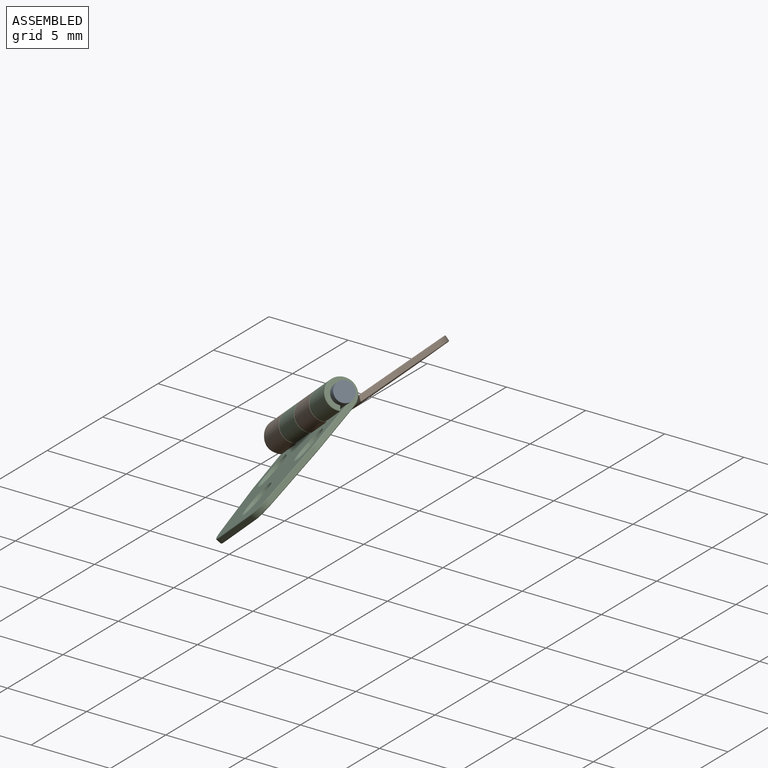
[diagram: assembled view]
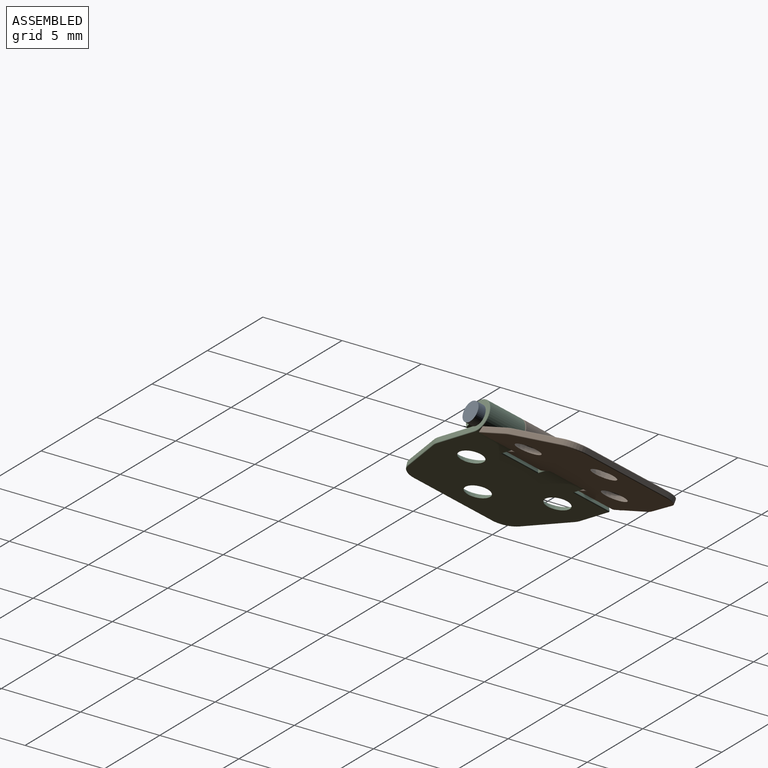
[diagram: assembled view, second angle]
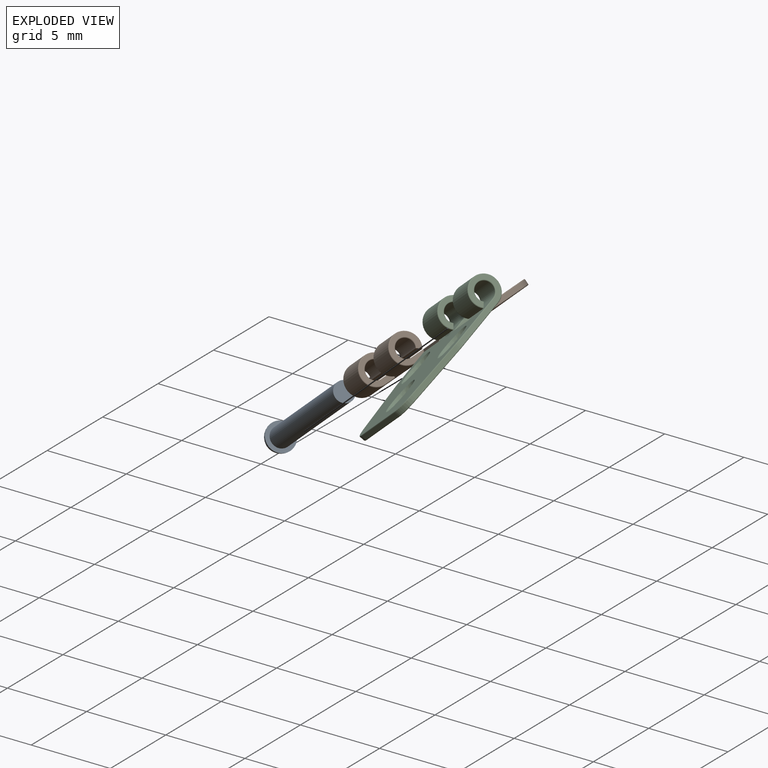
[diagram: exploded view]
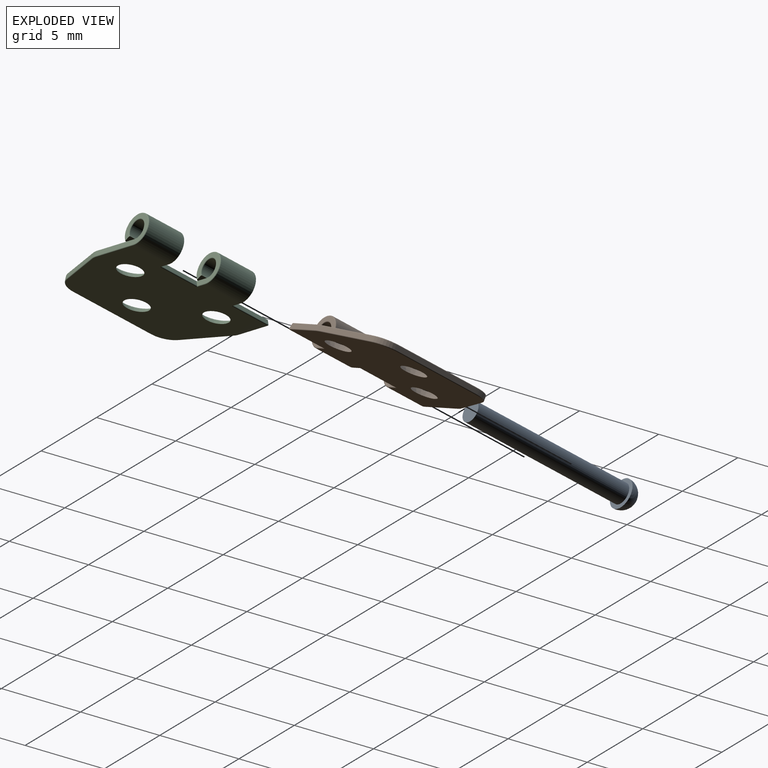
[diagram: exploded view, second angle]
ASSEMBLY  parts=3 mates=4
PART A: 4 faces, bbox 11.4x1.8x1.8 mm
  f0: cylinder r=0.62mm len=10.5mm, axis (-1,0,0), area 40.8mm2, adj f1,f3
  f1: plane 1.24x1.24mm, normal (1,0,0), area 1.2mm2, adj f0
  f2: sphere r=0.88mm, area 4.8mm2, adj f3
  f3: plane 1.75x1.75mm, normal (1,0,0), area 1.2mm2, adj f0,f2
PART B: 64 faces, bbox 10x8.6x2 mm
  f0: cylinder r=0.56mm len=2.4mm, axis (-1,0,0), area 7.1mm2, adj f2,f3,f32,f54
  f1: cylinder r=0.94mm len=2.4mm, axis (-1,0,0), area 11.9mm2, adj f2,f4,f36,f59
  f2: plane 2.5x0.31mm, normal (0,0.58,-0.81), area 0.9mm2, adj f0,f1,f17,f20,f32,f36,f54,f59
  f3: plane 9.9x7.45mm, normal (0,0,1), area 51.7mm2, adj f0,f7,f13,f14,f15,f26,f27,f28
  f4: plane 9.9x7.45mm, normal (0,0,-1), area 58.9mm2, adj f1,f8,f13,f14,f15,f39,f41,f44
  f5: plane 5.44x0.28mm, normal (0,-1,0), area 1.5mm2, adj f21,f24,f30,f48
  f6: plane 2.32x0.28mm, normal (-1,0,0), area 0.6mm2, adj f22,f38,f42,f44
  f7: cylinder r=0.56mm len=2.4mm, axis (-1,0,0), area 7.1mm2, adj f3,f9,f25,f57
  f8: cylinder r=0.94mm len=2.4mm, axis (-1,0,0), area 11.9mm2, adj f4,f9,f53,f62
  f9: plane 2.5x0.31mm, normal (0,0.58,-0.81), area 0.9mm2, adj f7,f8,f10,f19,f25,f53,f57,f62
  f10: plane 3.9x1.78mm, normal (1,0,0), area 1.9mm2, adj f9,f23,f25,f26,f52,f53
  f11: plane 3.23x1.03mm, normal (0.95,-0.3,0), area 0.9mm2, adj f23,f24,f28,f50
  f12: plane 3.23x1.03mm, normal (-0.95,-0.3,0), area 0.9mm2, adj f21,f22,f33,f46
  f13: cone r=0.55mm half-angle=45deg, axis (0,0,1), area 3.1mm2, adj f3,f4
  f14: cone r=0.55mm half-angle=45deg, axis (0,0,1), area 3.1mm2, adj f3,f4
  f15: cone r=0.55mm half-angle=45deg, axis (0,0,1), area 3.1mm2, adj f3,f4
  f16: plane 2.45x0.28mm, normal (0,0.91,0.41), area 0.7mm2, adj f17,f34,f37,f41,f42
  f17: plane 1.78x1.78mm, normal (-1,0,0), area 1.3mm2, adj f2,f16,f32,f34,f36,f39,f41
  f18: plane 2.51x0.28mm, normal (0,0.91,0.41), area 0.8mm2, adj f19,f20,f55,f56,f58,f61
  f19: plane 1.78x1.78mm, normal (-1,0,0), area 1.3mm2, adj f9,f18,f57,f58,f61,f62,f63
  f20: plane 1.78x1.78mm, normal (1,0,0), area 1.3mm2, adj f2,f18,f54,f55,f59,f60,f61
  f21: cylinder r=1.25mm len=1.19mm, axis (0,0,-1), area 0.4mm2, adj f5,f12,f31,f47
  f22: cylinder r=1.25mm len=0.38mm, axis (0,0,1), area 0.1mm2, adj f6,f12,f35,f45
  f23: cylinder r=1.25mm len=0.38mm, axis (0,0,-1), area 0.1mm2, adj f10,f11,f27,f51
  f24: cylinder r=1.25mm len=1.19mm, axis (0,0,1), area 0.4mm2, adj f5,f11,f29,f49
  f25: torus R=0.61mm, axis (1,0,0), area 0.2mm2, adj f7,f9,f10,f26
  f26: cylinder r=0.05mm len=3.02mm, axis (0,1,0), area 0.2mm2, adj f3,f10,f25,f27
  f27: torus R=1.2mm, axis (0,0,1), area 0mm2, adj f3,f23,f26,f28
  f28: cylinder r=0.05mm len=3.25mm, axis (0.3,0.95,0), area 0.3mm2, adj f3,f11,f27,f29
  f29: torus R=1.2mm, axis (0,0,1), area 0.1mm2, adj f3,f24,f28,f30
  f30: cylinder r=0.05mm len=5.44mm, axis (-1,0,0), area 0.4mm2, adj f3,f5,f29,f31
  f31: torus R=1.2mm, axis (0,0,1), area 0.1mm2, adj f3,f21,f30,f33
  f32: torus R=0.61mm, axis (1,0,0), area 0.2mm2, adj f0,f2,f17,f34
  f33: cylinder r=0.05mm len=3.25mm, axis (0.3,-0.95,0), area 0.3mm2, adj f3,f12,f31,f35
  f34: cylinder r=0.05mm len=0.82mm, axis (0,-1,0), area 0.1mm2, adj f3,f16,f17,f32,f37
  f35: torus R=1.2mm, axis (0,0,1), area 0mm2, adj f3,f22,f33,f38
  f36: torus R=0.89mm, axis (1,0,0), area 0.4mm2, adj f1,f2,f17,f39
  f37: cylinder r=0.05mm len=2.5mm, axis (-1,0,0), area 0.1mm2, adj f3,f16,f34,f40
  f38: cylinder r=0.05mm len=2.2mm, axis (0,-1,0), area 0.2mm2, adj f3,f6,f35,f40
  f39: cylinder r=0.05mm len=0.7mm, axis (0,1,0), area 0.1mm2, adj f4,f17,f36,f41
  f40: sphere r=0.05mm, area 0mm2, adj f37,f38,f42
  f41: cylinder r=0.05mm len=2.5mm, axis (1,0,0), area 0.2mm2, adj f4,f16,f17,f39,f43
  f42: cylinder r=0.05mm len=0.3mm, axis (0,-0.41,0.91), area 0mm2, adj f6,f16,f40,f43
  f43: sphere r=0.05mm, area 0mm2, adj f41,f42,f44
  f44: cylinder r=0.05mm len=2.32mm, axis (0,1,0), area 0.2mm2, adj f4,f6,f43,f45
  f45: torus R=1.2mm, axis (0,0,1), area 0mm2, adj f4,f22,f44,f46
  f46: cylinder r=0.05mm len=3.25mm, axis (-0.3,0.95,0), area 0.3mm2, adj f4,f12,f45,f47
  f47: torus R=1.2mm, axis (0,0,1), area 0.1mm2, adj f4,f21,f46,f48
  f48: cylinder r=0.05mm len=5.44mm, axis (1,0,0), area 0.4mm2, adj f4,f5,f47,f49
  f49: torus R=1.2mm, axis (0,0,1), area 0.1mm2, adj f4,f24,f48,f50
  f50: cylinder r=0.05mm len=3.25mm, axis (-0.3,-0.95,0), area 0.3mm2, adj f4,f11,f49,f51
  f51: torus R=1.2mm, axis (0,0,1), area 0mm2, adj f4,f23,f50,f52
  f52: cylinder r=0.05mm len=3.02mm, axis (0,-1,0), area 0.2mm2, adj f4,f10,f51,f53
  f53: torus R=0.89mm, axis (1,0,0), area 0.4mm2, adj f8,f9,f10,f52
  f54: torus R=0.61mm, axis (1,0,0), area 0.2mm2, adj f0,f2,f20,f55
  f55: cylinder r=0.05mm len=0.82mm, axis (0,1,0), area 0.1mm2, adj f3,f18,f20,f54,f56
  f56: cylinder r=0.05mm len=2.6mm, axis (-1,0,0), area 0.1mm2, adj f3,f18,f55,f58
  f57: torus R=0.61mm, axis (1,0,0), area 0.2mm2, adj f7,f9,f19,f58
  f58: cylinder r=0.05mm len=0.82mm, axis (0,-1,0), area 0.1mm2, adj f3,f18,f19,f56,f57
  f59: torus R=0.89mm, axis (1,0,0), area 0.4mm2, adj f1,f2,f20,f60
  f60: cylinder r=0.05mm len=0.7mm, axis (0,-1,0), area 0.1mm2, adj f4,f20,f59,f61
  f61: cylinder r=0.05mm len=2.6mm, axis (1,0,0), area 0.3mm2, adj f4,f18,f19,f20,f60,f63
  f62: torus R=0.89mm, axis (1,0,0), area 0.4mm2, adj f8,f9,f19,f63
  f63: cylinder r=0.05mm len=0.7mm, axis (0,1,0), area 0.1mm2, adj f4,f19,f61,f62
PART C: same geometry as B
PLACE A rot(axis=(-0.91,0.17,-0.37),159.6deg) t=(-21.63,47,-5.44)mm
PLACE B rot(axis=(-0.35,-0.1,0.93),157.1deg) t=(-4.27,33.07,6.69)mm
PLACE C rot(axis=(0.47,-0.81,-0.34),53.8deg) t=(-29.96,57.14,-13.83)mm
MATE planar A.f0 <-> B.f10  axis (-0.68,0.43,-0.59) through (-21.63,47,-5.44)mm
MATE cylindrical A.f0 <-> C.f57  axis (-0.68,0.43,-0.59) through (-18.05,44.75,-2.33)mm
MATE planar B.f19 <-> C.f17  axis (0.68,-0.43,0.59) through (-19.92,45.93,-3.97)mm
MATE cylindrical A.f0 <-> B.f57  axis (-0.68,0.43,-0.59) through (-21.63,47,-5.44)mm
